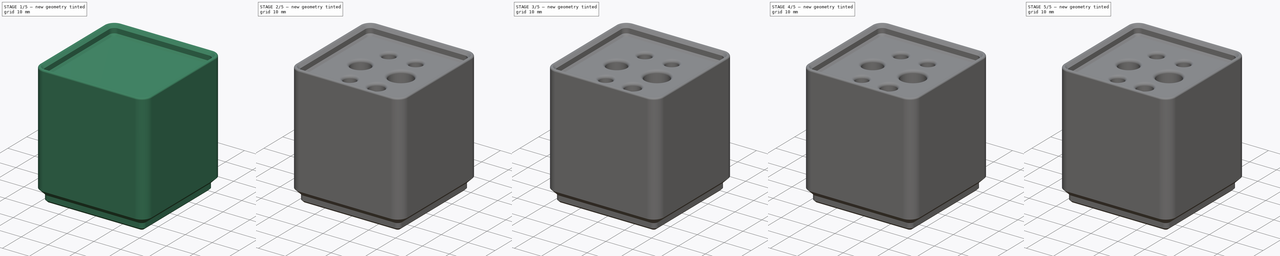
[diagram: build sequence overview — one tinted view per stage of 5, left to right]
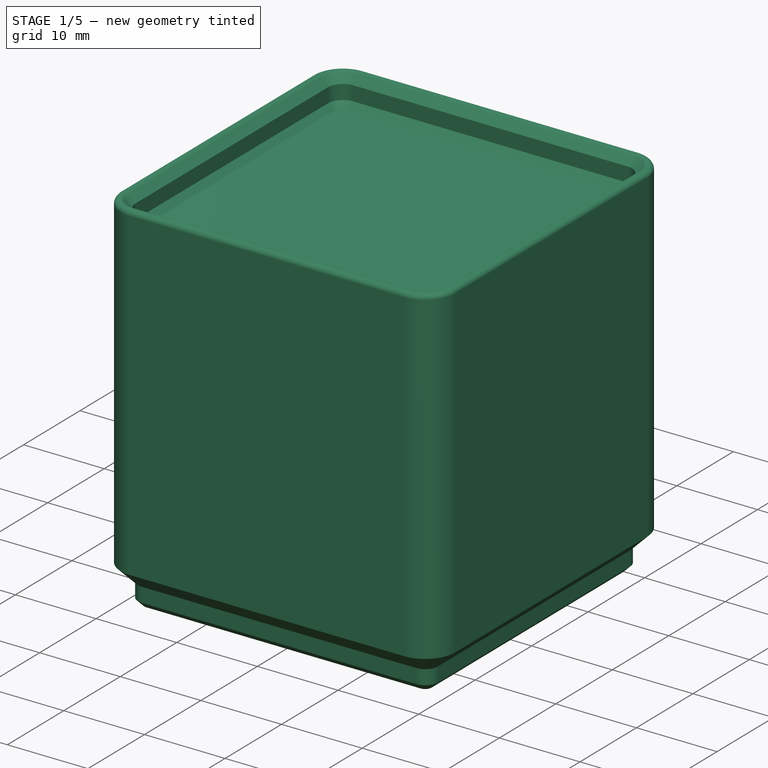
[diagram: stage 1 of 5 — iso view after this stage's code; geometry added in this stage tinted green]
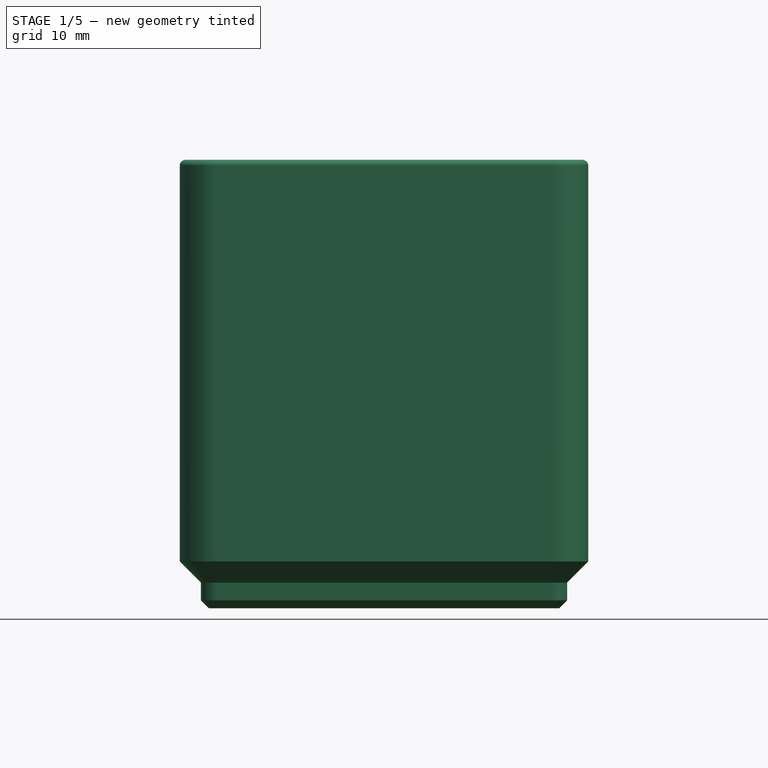
[diagram: stage 1 of 5 — front view after this stage's code; geometry added in this stage tinted green]
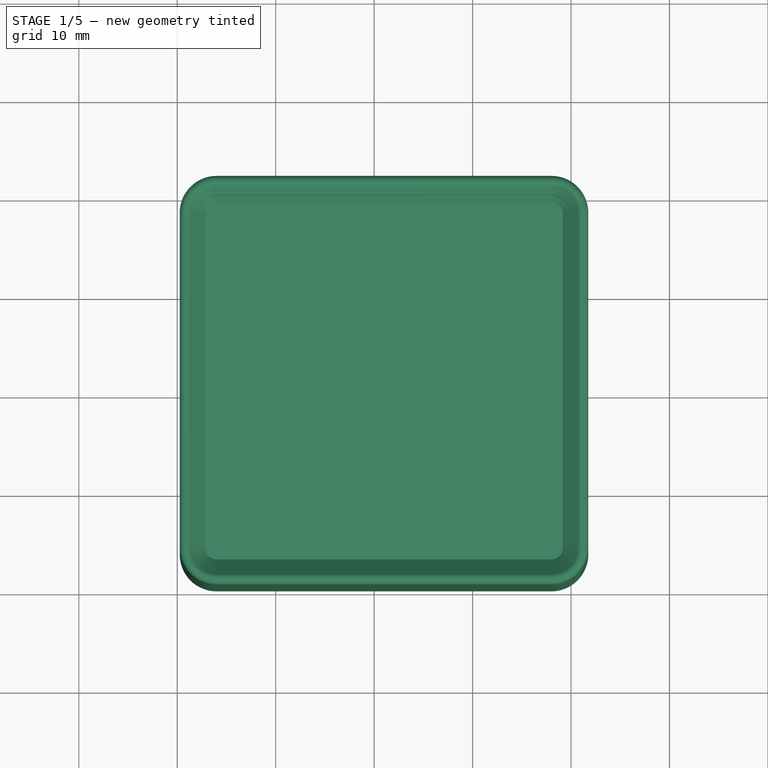
[diagram: stage 1 of 5 — top view after this stage's code; geometry added in this stage tinted green]
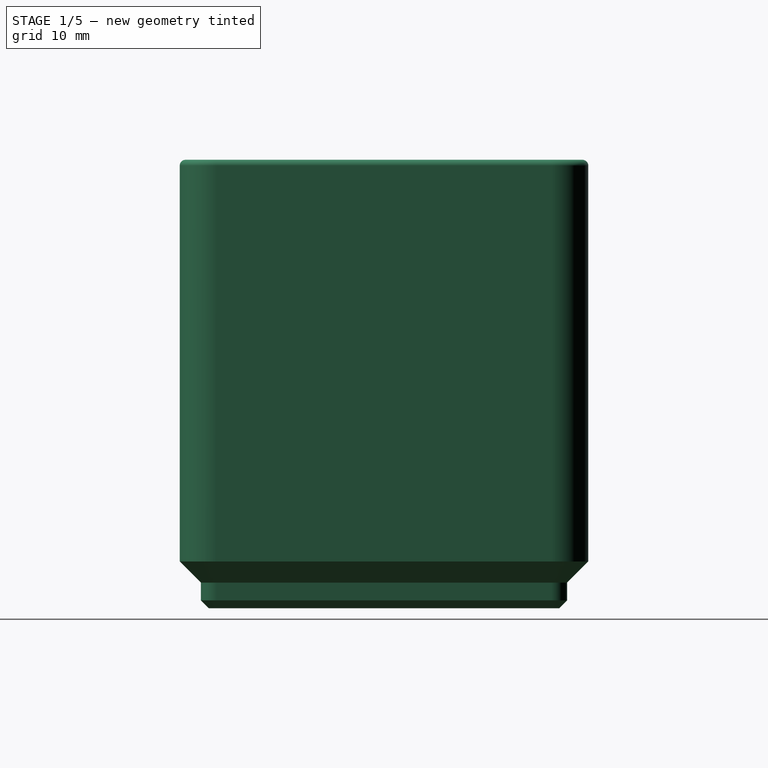
[diagram: stage 1 of 5 — right view after this stage's code; geometry added in this stage tinted green]
FCSTD DOCUMENT  (FreeCAD 0.20R29410 (Git))
Label: gridfinity_wera_hex_plus_small
License: All rights reserved
LicenseURL: http://en.wikipedia.org/wiki/All_rights_reserved
objects: Part::Feature×7, Part::Part2DObjectPython×6, Part::Extrusion×6, Part::Cut×6, PartDesign::FeatureBase×2, PartDesign::Plane×2, Sketcher::SketchObject×2, PartDesign::Pocket×2, PartDesign::Fillet×2, PartDesign::Body×2
note: 41 computed .brp shape members not serialized (recipe doc carries the construction recipe); baked Part::Feature solids carry a one-line shape summary decoded from their .brp

FEATURE [Part::Feature] Solid  label="Pinecil Tip x4 v4"
  shape: bbox 42.12 x 42.12 x 45.55 mm, 111 faces (baked)
FEATURE [Part::Feature] Defeatured005
  shape: bbox 42.12 x 42.12 x 45.55 mm, 82 faces (baked)
FEATURE [PartDesign::FeatureBase] BaseFeature
  BaseFeature = -> Defeatured005
FEATURE [PartDesign::FeatureBase] BaseFeature001
  BaseFeature = -> Defeatured005
FEATURE [PartDesign::Plane] DatumPlane001
  AttachmentOffset = pos=(0,0,42) rot=(0,0,1;0rad)
  Length = 80.1
  MapMode = 2
  Placement = pos=(0,0,42) rot=(0,0,1;0rad)
  ResizeMode = 0
  Support = -> [X_Axis001]
  Width = 80.1
  expr: .AttachmentOffset.Base.z = 14 + 4 * 7
FEATURE [Sketcher::SketchObject] Sketch001
  FullyConstrained = true
  MapMode = 5
  Placement = pos=(0,0,42) rot=(0,0,1;0rad)
  Support = -> [DatumPlane001]
  expr: Constraints[10] = (41.5 - 15) / 2 - 0.75
  expr: Constraints[12] = (41.5 - 10) / 2
  expr: Constraints[13] = 10
  expr: Constraints[14] = (41.5 - 10) / 2
  expr: Constraints[15] = 41.5 / 2
  expr: Constraints[16] = 41.5 / 4
  expr: Constraints[17] = 41.5 / 4 * 3
  sketch-geometry (6):
    g0: Circle CenterX=25.75 CenterY=31.125 CenterZ=0 NormalX=0 NormalY=0 NormalZ=1 AngleXU=0 Radius=2.25
    g1: Circle CenterX=15.75 CenterY=31.125 CenterZ=0 NormalX=0 NormalY=0 NormalZ=1 AngleXU=0 Radius=2.25
    g2: Circle CenterX=15.75 CenterY=10.375 CenterZ=0 NormalX=0 NormalY=0 NormalZ=1 AngleXU=0 Radius=2.25
    g3: Circle CenterX=25.75 CenterY=10.375 CenterZ=0 NormalX=0 NormalY=0 NormalZ=1 AngleXU=0 Radius=2.75
    g4: Circle CenterX=12.5 CenterY=20.75 CenterZ=0 NormalX=0 NormalY=0 NormalZ=1 AngleXU=0 Radius=3.5
    g5: Circle CenterX=27.5 CenterY=20.75 CenterZ=0 NormalX=0 NormalY=0 NormalZ=1 AngleXU=0 Radius=4.25
  constraints (18):
    c: Diameter(g4) = 7
    c: Diameter(g0) = 4.5
    c: Diameter(g1) = 4.5
    c: Diameter(g2) = 4.5
    c: Diameter(g3) = 5.5
    c: Diameter(g5) = 8.5
    c: Horizontal(g2,g3)
    c: Horizontal(g1,g0)
    c: Horizontal(g4,g5)
    c: DistanceX(g4,g5) = 15
    c: DistanceX(g-1,g4) = 12.5
    c: DistanceX(g1,g0) = 10
    c: DistanceX(g-1,g1) = 15.75
    c: DistanceX(g2,g3) = 10
    c: DistanceX(g-1,g2) = 15.75
    c: DistanceY(g-1,g4) = 20.75
    c: DistanceY(g-1,g2) = 10.375
    c: DistanceY(g-1,g1) = 31.125
FEATURE [PartDesign::Pocket] Pocket001
  BaseFeature = -> BaseFeature001
  Direction = (0,0,-1)
  Length = 35
  Length2 = 5
  Profile = -> Sketch001
  ReferenceAxis = -> Sketch001 [N_Axis]
  Type = 0
  expr: Length = 4 * 7 + 7
FEATURE [PartDesign::Fillet] Fillet001
  Base = -> Pocket001 [Edge22,Edge21,Edge19,Edge20,Edge23,Edge24]
  BaseFeature = -> Pocket001
  Radius = 1
  SupportTransform = false
  UseAllEdges = false
FEATURE [PartDesign::Body] Body001  label="unlabeled"
  BaseFeature = -> Defeatured005
  Group = -> [BaseFeature001,DatumPlane001,Sketch001,Pocket001,Fillet001]
  Origin = -> Origin001
  Tip = -> Fillet001
note: 6 file-system paths scrubbed to <path> (originals preserved in the JSON sidecar)
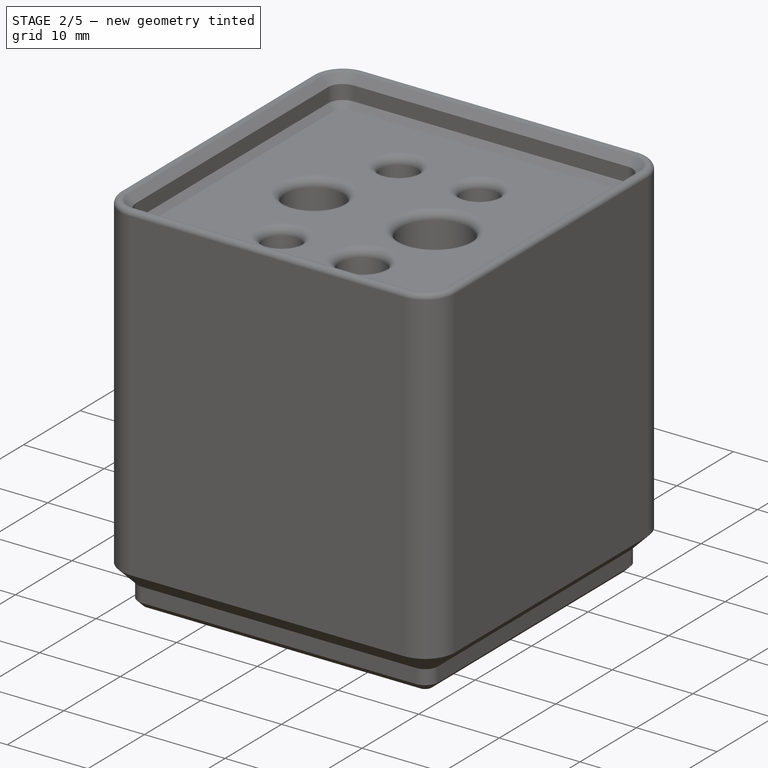
[diagram: stage 2 of 5 — iso view after this stage's code; geometry added in this stage tinted green]
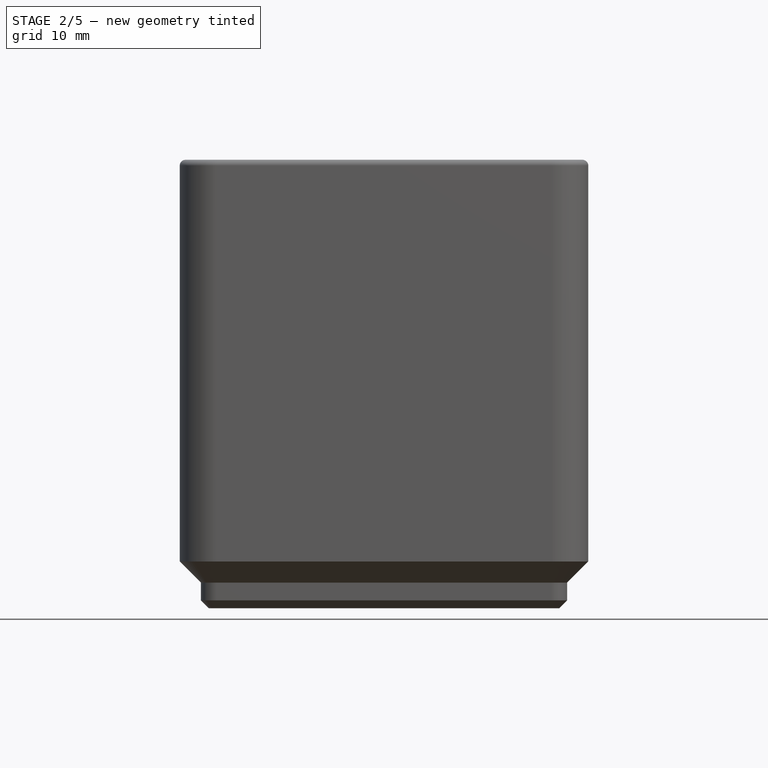
[diagram: stage 2 of 5 — front view after this stage's code; geometry added in this stage tinted green]
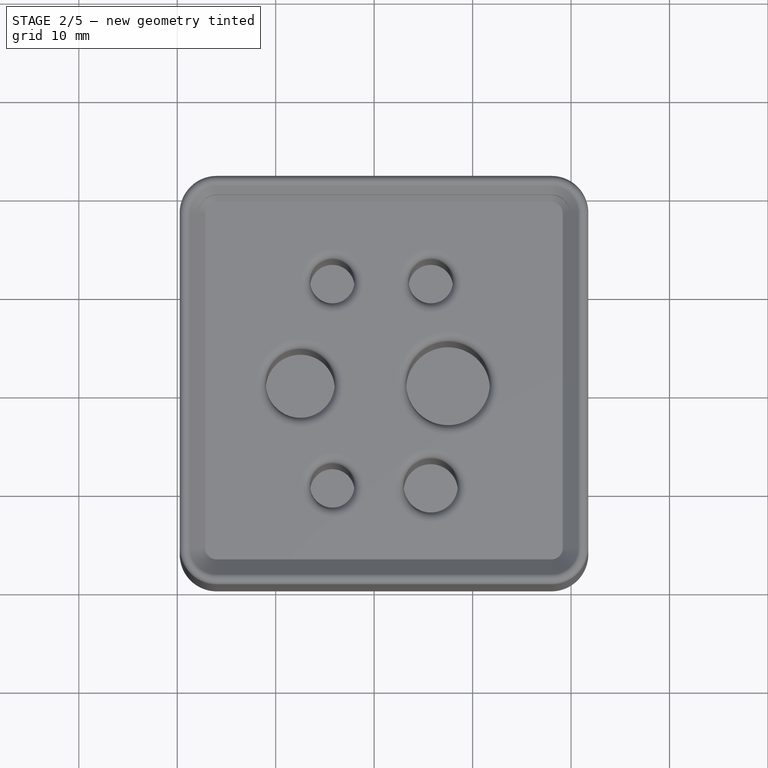
[diagram: stage 2 of 5 — top view after this stage's code; geometry added in this stage tinted green]
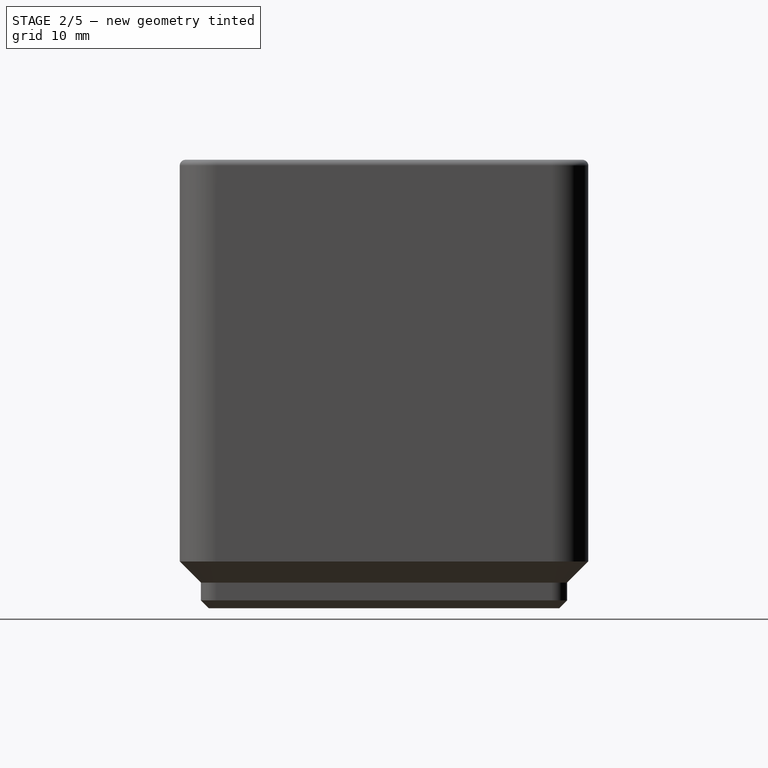
[diagram: stage 2 of 5 — right view after this stage's code; geometry added in this stage tinted green]
FEATURE [Part::Feature] Defeatured
  shape: bbox 42.12 x 42.12 x 45.55 mm, 107 faces (baked)
FEATURE [Part::Feature] Defeatured001
  shape: bbox 42.12 x 42.12 x 45.55 mm, 103 faces (baked)
FEATURE [Part::Feature] Defeatured002
  shape: bbox 42.12 x 42.12 x 45.55 mm, 99 faces (baked)
FEATURE [Part::Feature] Defeatured003
  shape: bbox 42.12 x 42.12 x 45.55 mm, 95 faces (baked)
FEATURE [Part::Feature] Defeatured004
  shape: bbox 42.12 x 42.12 x 45.55 mm, 91 faces (baked)
FEATURE [PartDesign::Plane] DatumPlane
  AttachmentOffset = pos=(0,0,42) rot=(0,0,1;0rad)
  Length = 80.1
  MapMode = 2
  Placement = pos=(0,0,42) rot=(0,0,1;0rad)
  ResizeMode = 0
  Support = -> [X_Axis]
  Width = 80.1
  expr: .AttachmentOffset.Base.z = 14 + 4 * 7
FEATURE [Sketcher::SketchObject] Sketch
  FullyConstrained = true
  MapMode = 5
  Placement = pos=(0,0,42) rot=(0,0,1;0rad)
  Support = -> [DatumPlane]
  expr: Constraints[10] = (41.5 - 15) / 2 - 0.75
  expr: Constraints[12] = (41.5 - 10) / 2
  expr: Constraints[13] = 10
  expr: Constraints[14] = (41.5 - 10) / 2
  expr: Constraints[15] = 41.5 / 2
  expr: Constraints[16] = 41.5 / 4
  expr: Constraints[17] = 41.5 / 4 * 3
  sketch-geometry (6):
    g0: Circle CenterX=25.75 CenterY=31.125 CenterZ=0 NormalX=0 NormalY=0 NormalZ=1 AngleXU=0 Radius=2.25
    g1: Circle CenterX=15.75 CenterY=31.125 CenterZ=0 NormalX=0 NormalY=0 NormalZ=1 AngleXU=0 Radius=2.25
    g2: Circle CenterX=15.75 CenterY=10.375 CenterZ=0 NormalX=0 NormalY=0 NormalZ=1 AngleXU=0 Radius=2.25
    g3: Circle CenterX=25.75 CenterY=10.375 CenterZ=0 NormalX=0 NormalY=0 NormalZ=1 AngleXU=0 Radius=2.75
    g4: Circle CenterX=12.5 CenterY=20.75 CenterZ=0 NormalX=0 NormalY=0 NormalZ=1 AngleXU=0 Radius=3.5
    g5: Circle CenterX=27.5 CenterY=20.75 CenterZ=0 NormalX=0 NormalY=0 NormalZ=1 AngleXU=0 Radius=4.25
  constraints (18):
    c: Diameter(g4) = 7
    c: Diameter(g0) = 4.5
    c: Diameter(g1) = 4.5
    c: Diameter(g2) = 4.5
    c: Diameter(g3) = 5.5
    c: Diameter(g5) = 8.5
    c: Horizontal(g2,g3)
    c: Horizontal(g1,g0)
    c: Horizontal(g4,g5)
    c: DistanceX(g4,g5) = 15
    c: DistanceX(g-1,g4) = 12.5
    c: DistanceX(g1,g0) = 10
    c: DistanceX(g-1,g1) = 15.75
    c: DistanceX(g2,g3) = 10
    c: DistanceX(g-1,g2) = 15.75
    c: DistanceY(g-1,g4) = 20.75
    c: DistanceY(g-1,g2) = 10.375
    c: DistanceY(g-1,g1) = 31.125
FEATURE [PartDesign::Pocket] Pocket
  BaseFeature = -> BaseFeature
  Direction = (0,0,-1)
  Length = 35
  Length2 = 5
  Profile = -> Sketch
  ReferenceAxis = -> Sketch [N_Axis]
  Type = 0
  expr: Length = 4 * 7 + 7
FEATURE [Part::Part2DObjectPython] ShapeString  label="1.5mm"  # Draft 2D object (typed FeaturePython)
  FontFile = <path>
  MakeFace = true
  Placement = pos=(13,35,42) rot=(0,0,1;0rad)
  Size = 2.5
  String = 1.5
  Tracking = 0
FEATURE [Part::Extrusion] Extrude
  Base = -> ShapeString
  Dir = (0,0,1)
  DirMode = 2
  FaceMakerClass = Part::FaceMakerBullseye
  LengthFwd = 0
  LengthRev = 0.6
  Solid = false
  Symmetric = false
FEATURE [PartDesign::Fillet] Fillet
  Base = -> Pocket [Edge22,Edge21,Edge19,Edge20,Edge23,Edge24]
  BaseFeature = -> Pocket
  Radius = 1
  SupportTransform = false
  UseAllEdges = false
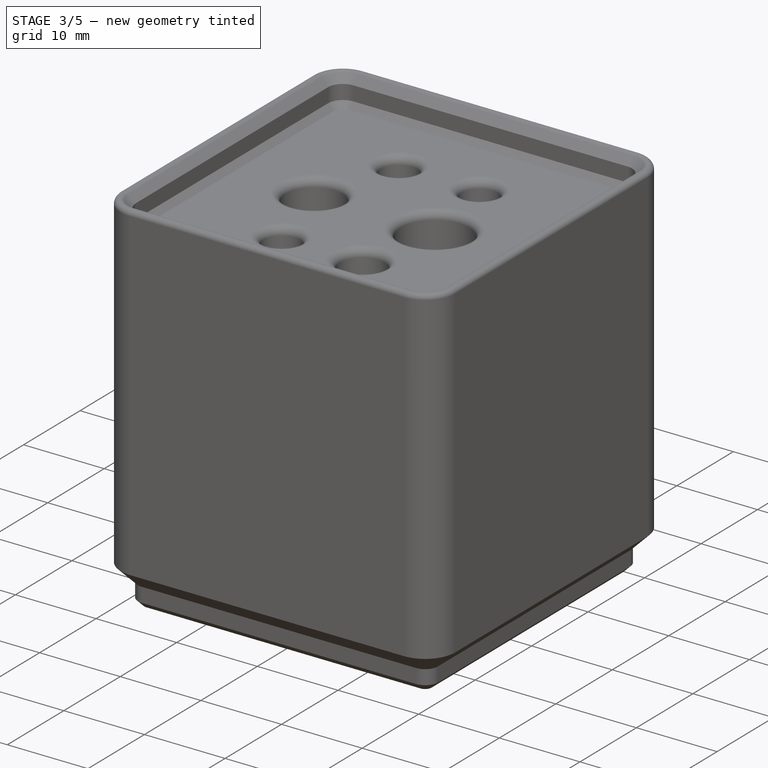
[diagram: stage 3 of 5 — iso view after this stage's code; geometry added in this stage tinted green]
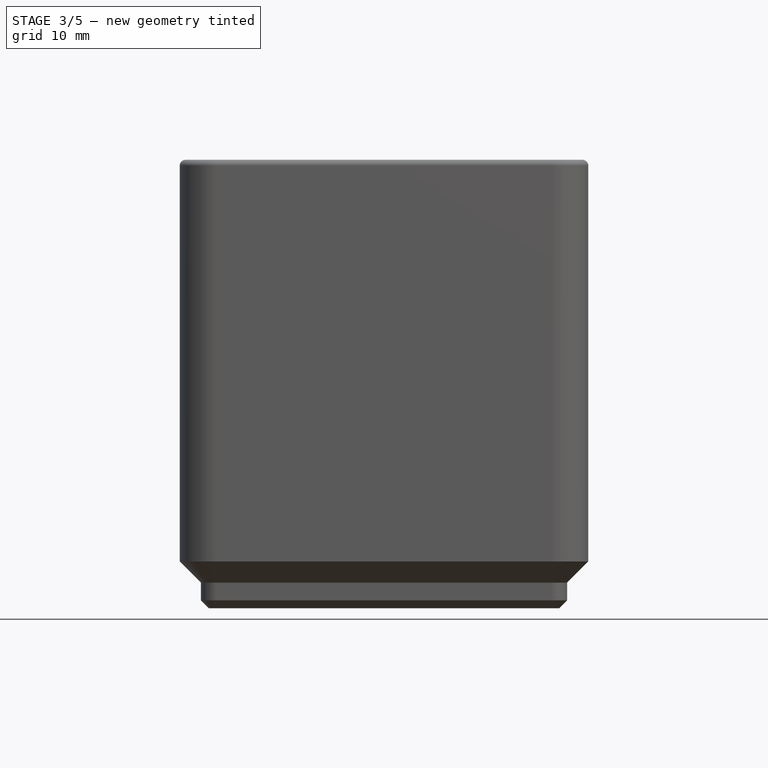
[diagram: stage 3 of 5 — front view after this stage's code; geometry added in this stage tinted green]
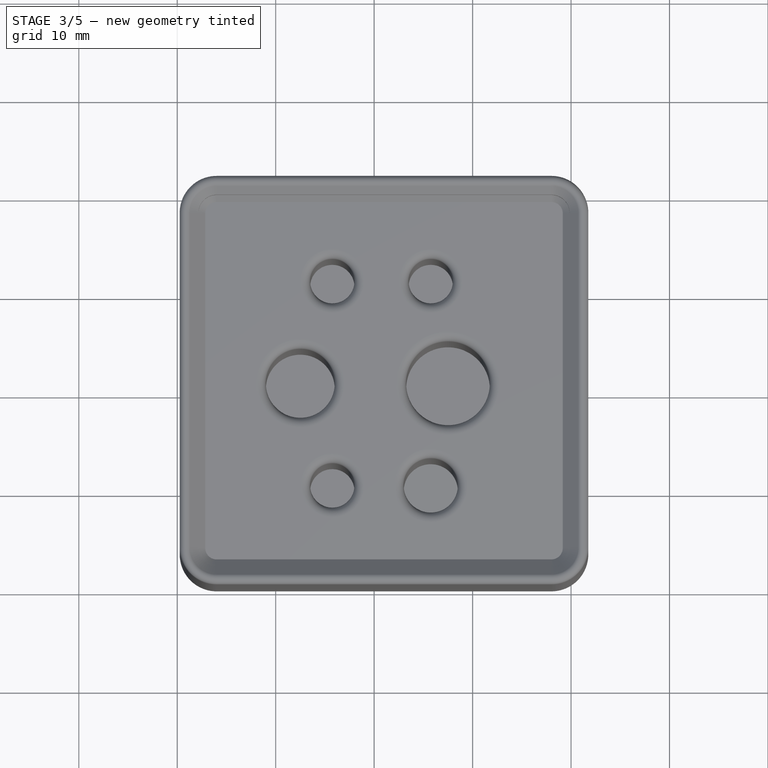
[diagram: stage 3 of 5 — top view after this stage's code; geometry added in this stage tinted green]
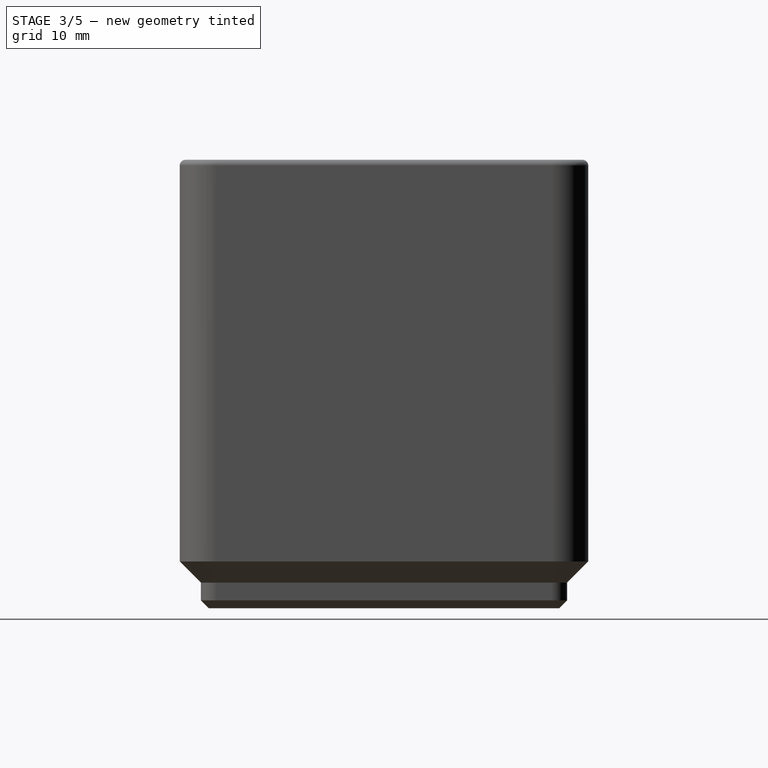
[diagram: stage 3 of 5 — right view after this stage's code; geometry added in this stage tinted green]
FEATURE [Part::Part2DObjectPython] ShapeString001  label="2.5mm"  # Draft 2D object (typed FeaturePython)
  FontFile = <path>
  MakeFace = true
  Placement = pos=(13.35,4,42) rot=(0,0,1;0rad)
  Size = 2.5
  String = 2.5
  Tracking = 0
FEATURE [Part::Extrusion] Extrude001
  Base = -> ShapeString001
  Dir = (0,0,1)
  DirMode = 2
  FaceMakerClass = Part::FaceMakerBullseye
  LengthFwd = 0
  LengthRev = 0.6
  Solid = false
  Symmetric = false
FEATURE [PartDesign::Body] Body
  BaseFeature = -> Defeatured005
  Group = -> [BaseFeature,DatumPlane,Sketch,Pocket,Fillet]
  Origin = -> Origin
  Tip = -> Fillet
FEATURE [Part::Part2DObjectPython] ShapeString002  label="4mm"  # Draft 2D object (typed FeaturePython)
  FontFile = <path>
  MakeFace = true
  Placement = pos=(6.75,18.25,42) rot=(0,0,1;1.5708rad)
  Size = 2.5
  String = 4
  Tracking = 0
FEATURE [Part::Extrusion] Extrude002
  Base = -> ShapeString002
  Dir = (0,0,1)
  DirMode = 2
  FaceMakerClass = Part::FaceMakerBullseye
  LengthFwd = 0
  LengthRev = 0.6
  Solid = false
  Symmetric = false
FEATURE [Part::Cut] Cut
  Base = -> Body
  Tool = -> Extrude
FEATURE [Part::Cut] Cut001
  Base = -> Cut
  Tool = -> Extrude001
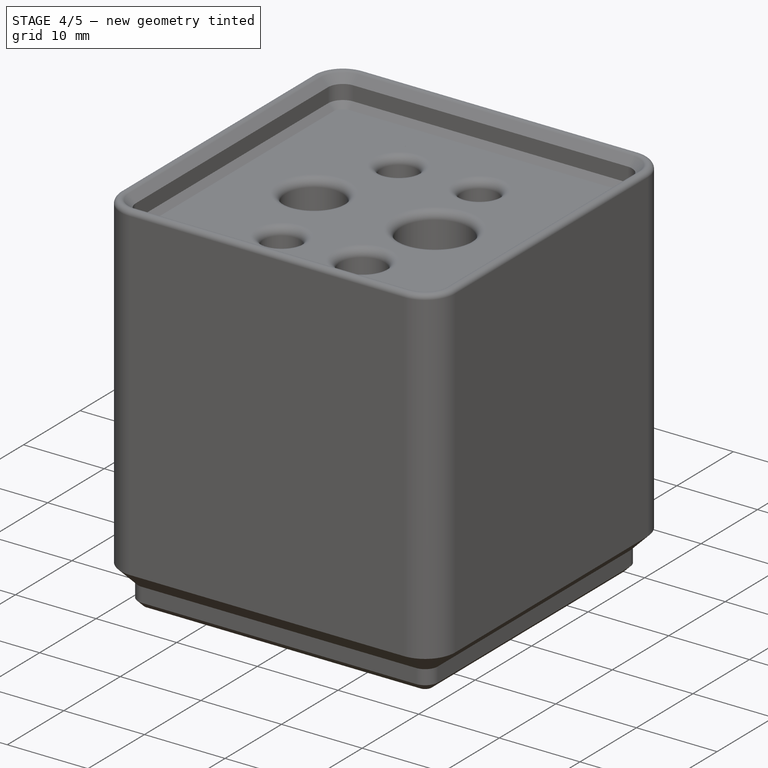
[diagram: stage 4 of 5 — iso view after this stage's code; geometry added in this stage tinted green]
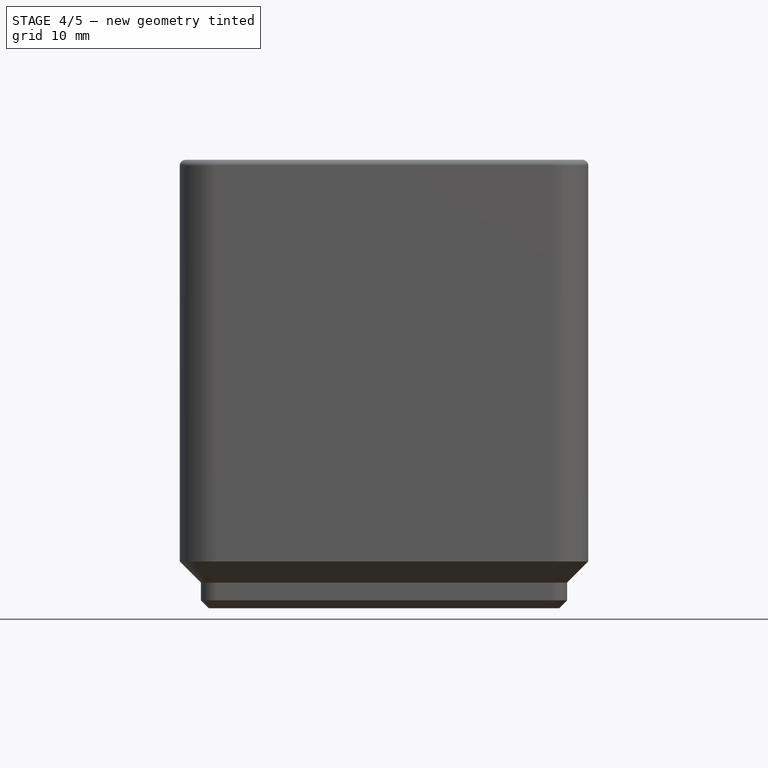
[diagram: stage 4 of 5 — front view after this stage's code; geometry added in this stage tinted green]
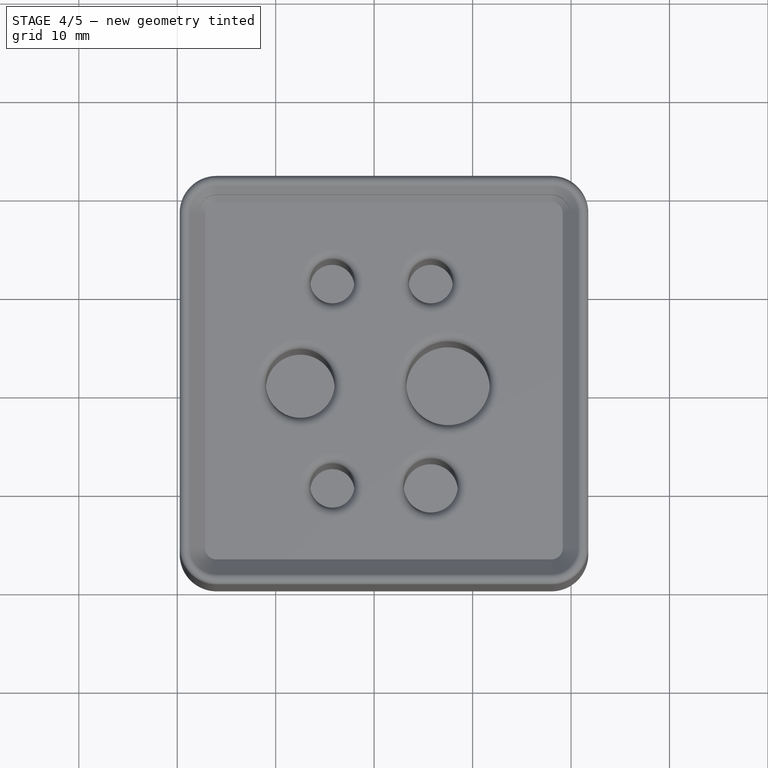
[diagram: stage 4 of 5 — top view after this stage's code; geometry added in this stage tinted green]
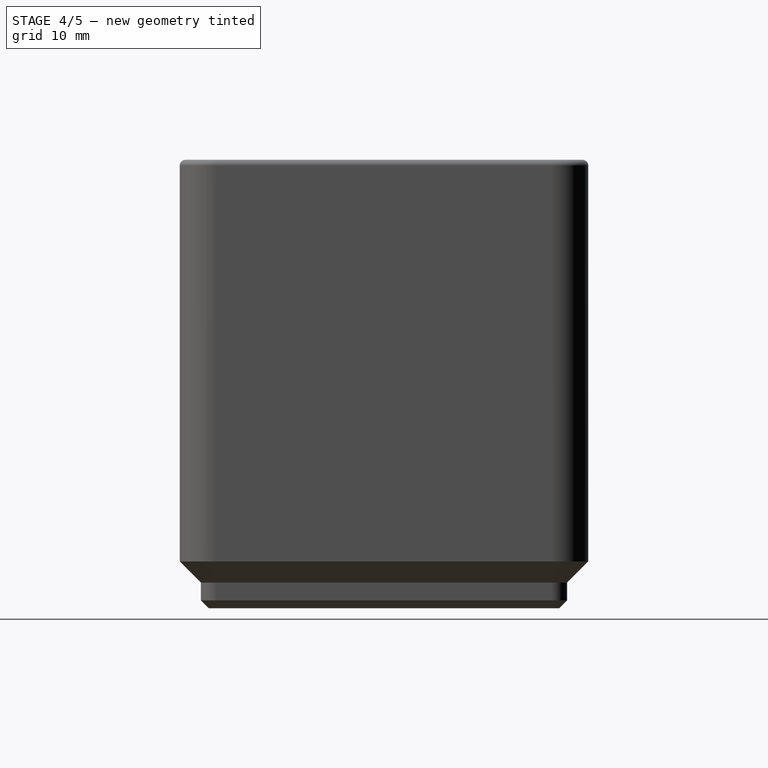
[diagram: stage 4 of 5 — right view after this stage's code; geometry added in this stage tinted green]
FEATURE [Part::Part2DObjectPython] ShapeString003  label="5mm"  # Draft 2D object (typed FeaturePython)
  FontFile = <path>
  MakeFace = true
  Placement = pos=(34,23.25,42) rot=(0,0,-1;1.5708rad)
  Size = 2.5
  String = 5
  Tracking = 0
FEATURE [Part::Extrusion] Extrude003
  Base = -> ShapeString003
  Dir = (0,0,1)
  DirMode = 2
  FaceMakerClass = Part::FaceMakerBullseye
  LengthFwd = 0
  LengthRev = 0.6
  Solid = false
  Symmetric = false
FEATURE [Part::Cut] Cut002
  Base = -> Cut001
  Tool = -> Extrude002
FEATURE [Part::Cut] Cut003
  Base = -> Cut002
  Tool = -> Extrude003
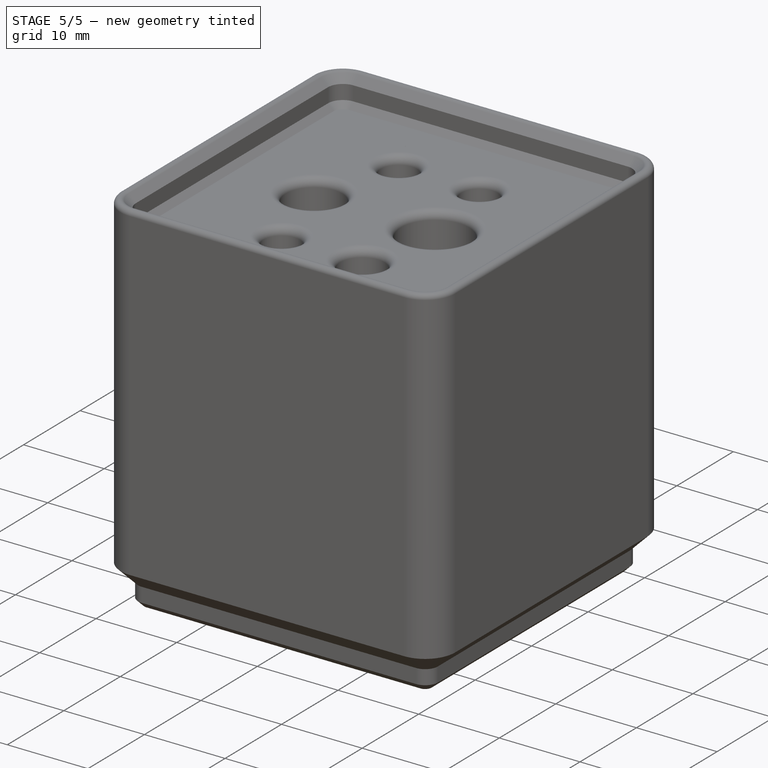
[diagram: stage 5 of 5 — iso view after this stage's code; geometry added in this stage tinted green]
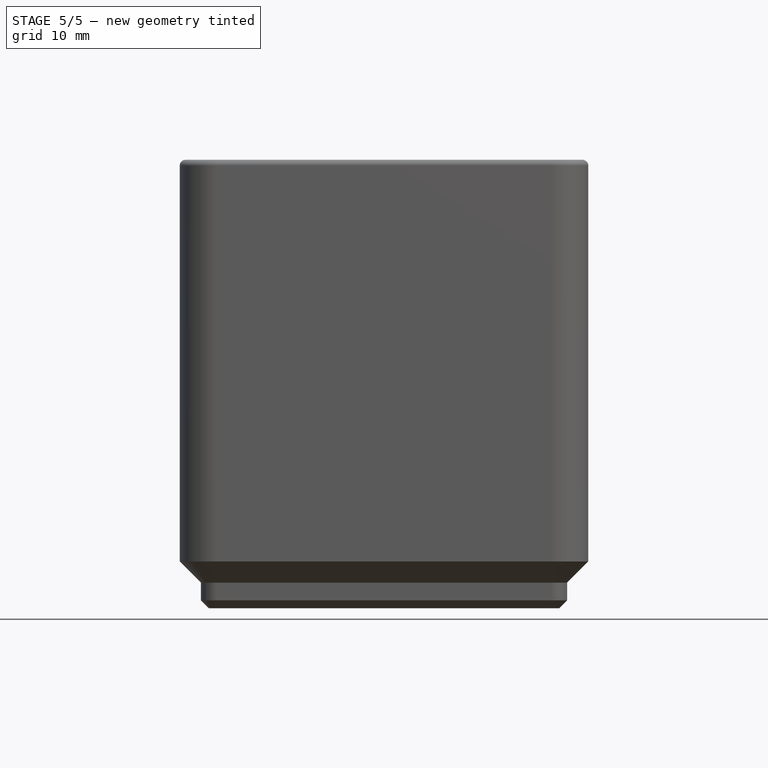
[diagram: stage 5 of 5 — front view after this stage's code; geometry added in this stage tinted green]
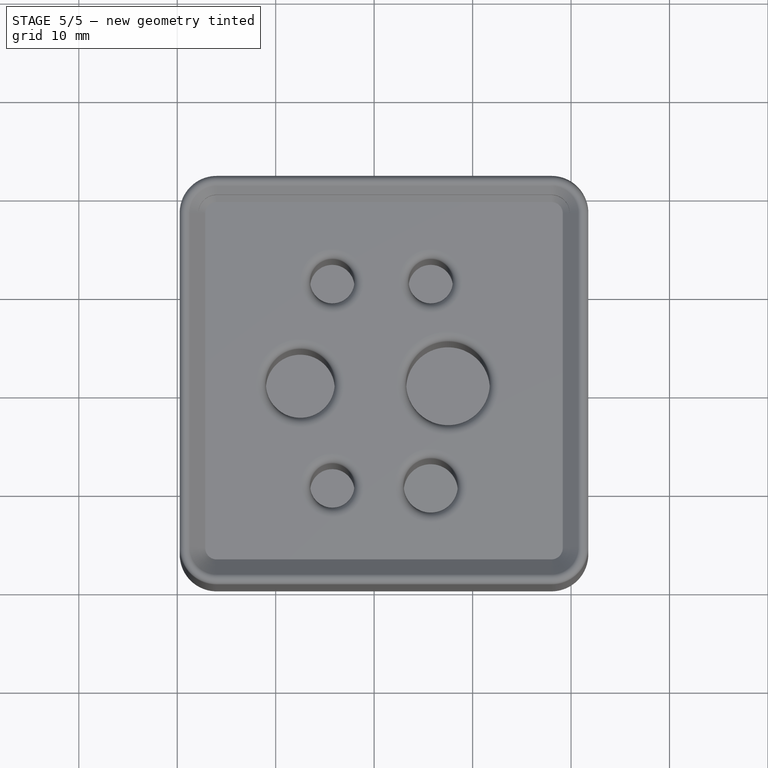
[diagram: stage 5 of 5 — top view after this stage's code; geometry added in this stage tinted green]
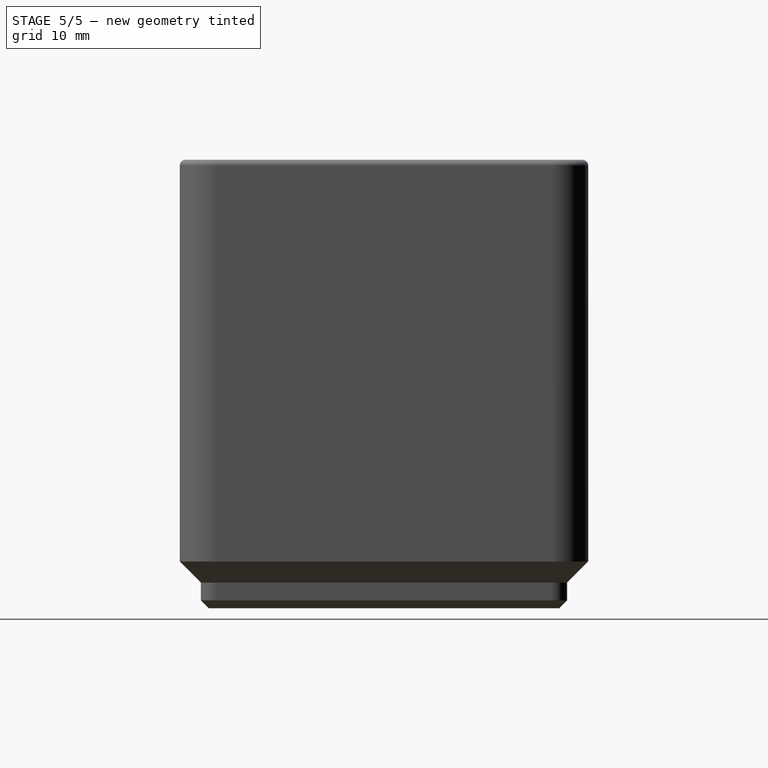
[diagram: stage 5 of 5 — right view after this stage's code; geometry added in this stage tinted green]
FEATURE [Part::Part2DObjectPython] ShapeString004  label="2mm"  # Draft 2D object (typed FeaturePython)
  FontFile = <path>
  MakeFace = true
  Placement = pos=(23.25,35,42) rot=(0,0,1;0rad)
  Size = 2.5
  String = 2
  Tracking = 0
FEATURE [Part::Extrusion] Extrude004
  Base = -> ShapeString004
  Dir = (0,0,1)
  DirMode = 2
  FaceMakerClass = Part::FaceMakerBullseye
  LengthFwd = 0
  LengthRev = 0.6
  Solid = false
  Symmetric = false
FEATURE [Part::Part2DObjectPython] ShapeString005  label="3mm"  # Draft 2D object (typed FeaturePython)
  FontFile = <path>
  MakeFace = true
  Placement = pos=(23.25,4,42) rot=(0,0,1;0rad)
  Size = 2.5
  String = 3
  Tracking = 0
FEATURE [Part::Extrusion] Extrude005
  Base = -> ShapeString005
  Dir = (0,0,1)
  DirMode = 2
  FaceMakerClass = Part::FaceMakerBullseye
  LengthFwd = 0
  LengthRev = 0.6
  Solid = false
  Symmetric = false
FEATURE [Part::Cut] Cut004
  Base = -> Cut003
  Tool = -> Extrude004
FEATURE [Part::Cut] Cut005  label="labeled"
  Base = -> Cut004
  Tool = -> Extrude005
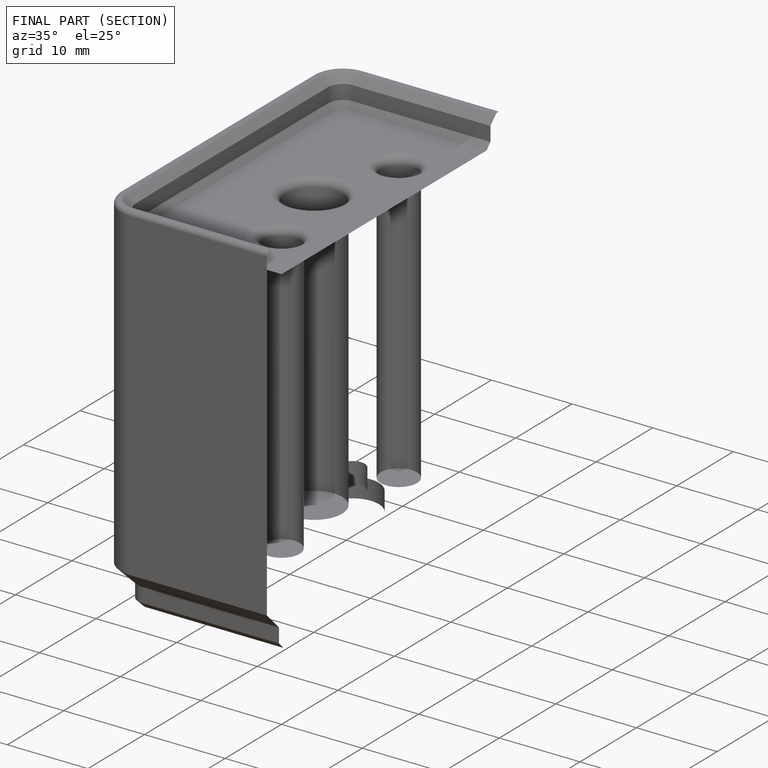
[diagram: finished part — half-section view (interior)]
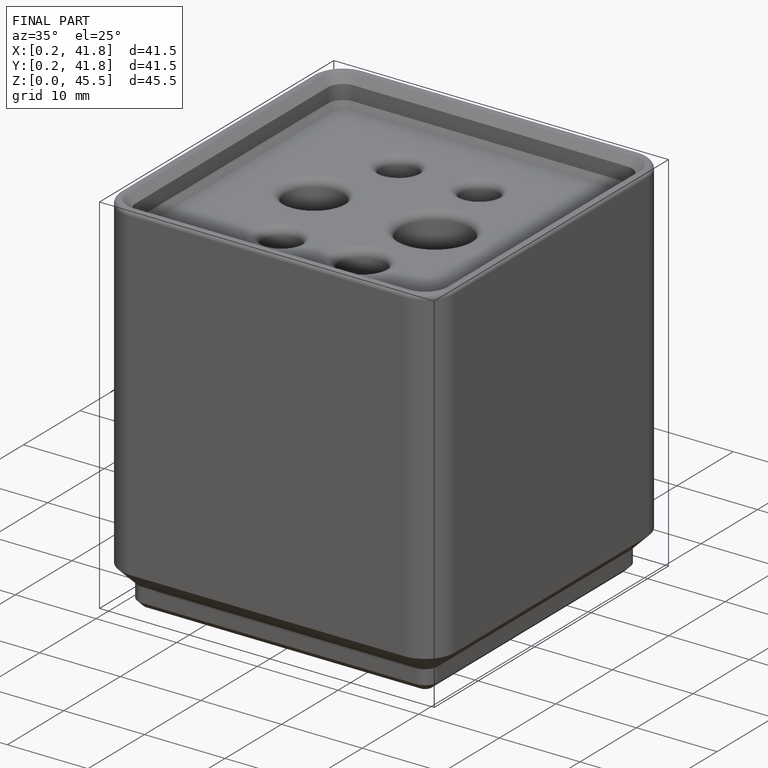
[diagram: finished part — iso view with bounding-box wireframe]
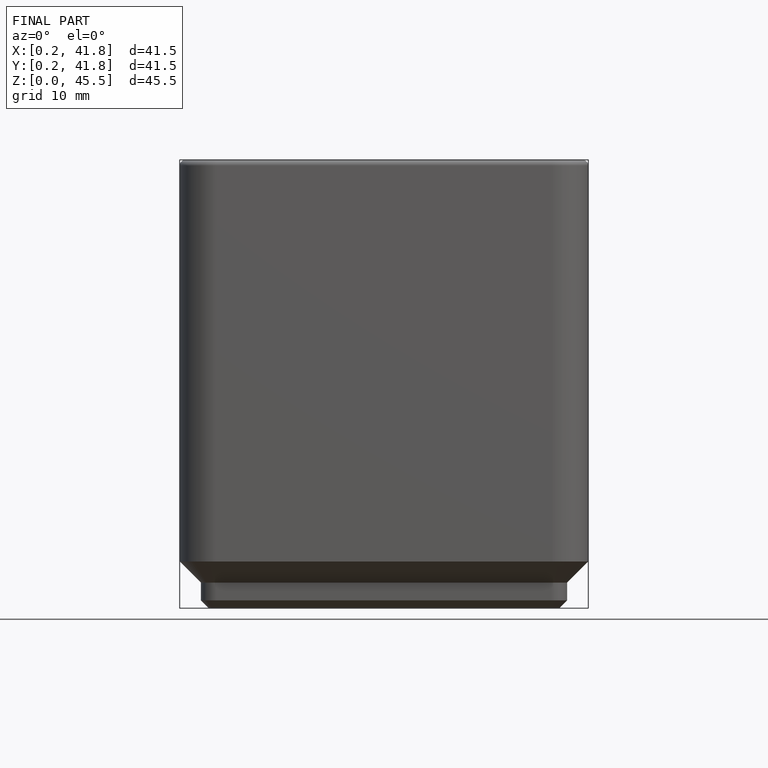
[diagram: finished part — front view with bounding-box wireframe]
